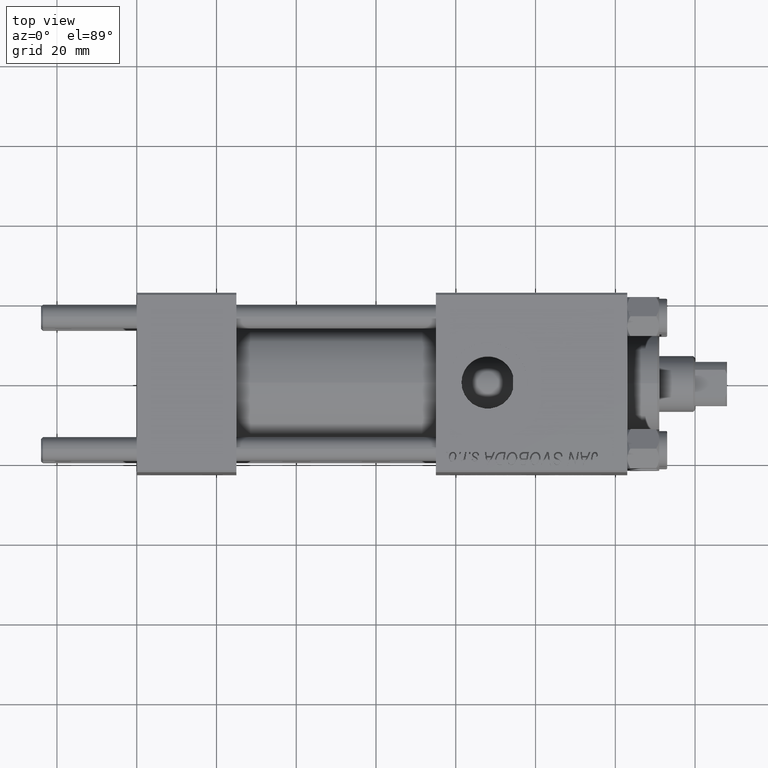
[diagram: clean part render]
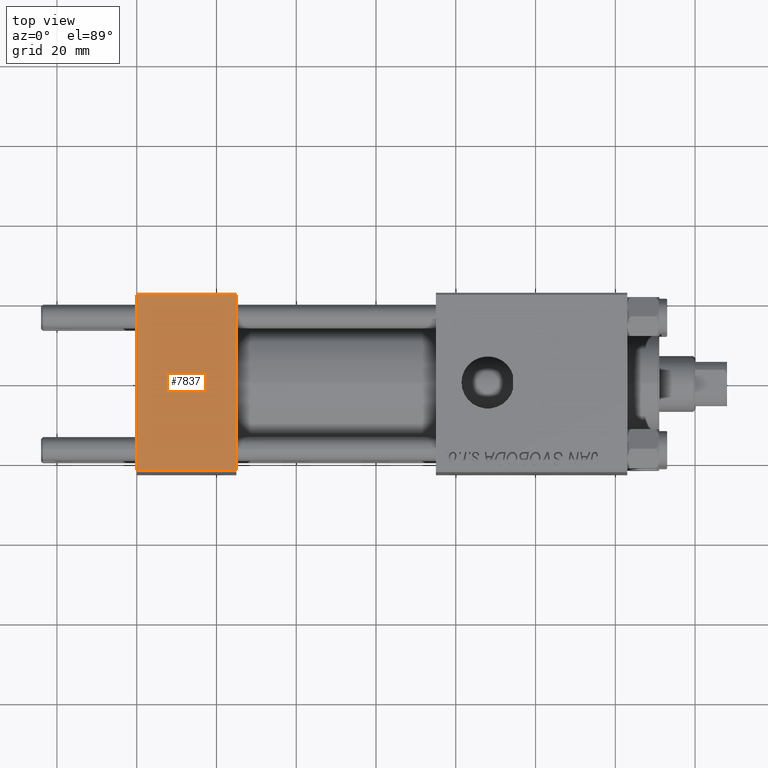
[diagram: same view with one face highlighted and labeled with its STEP entity id]
A machine part, top view. The second image highlights one B-rep face of the part: STEP entity #7837.
In plain terms, the highlighted planar face has unit normal (0, 0, -1).
Its self-contained STEP definition (entity closure, byte-faithful):
#279 = FACE_OUTER_BOUND ( 'NONE', #9865, .T. ) ;
#1384 = CARTESIAN_POINT ( 'NONE',  ( 25.00000000000000000, 22.50000000000000000, 22.50000000000000355 ) ) ;
#1576 = LINE ( 'NONE', #47430, #38972 ) ;
#3339 = VERTEX_POINT ( 'NONE', #30592 ) ;
#6421 = EDGE_CURVE ( 'NONE', #45155, #34618, #12249, .T. ) ;
#7803 = DIRECTION ( 'NONE',  ( 1.000000000000000000, 0.000000000000000000, 0.000000000000000000 ) ) ;
#7837 = ADVANCED_FACE ( 'NONE', ( #279 ), #34800, .F. ) ;
#8982 = ORIENTED_EDGE ( 'NONE', *, *, #13353, .T. ) ;
#9865 = EDGE_LOOP ( 'NONE', ( #28992, #8982, #26243, #35178 ) ) ;
#10669 = DIRECTION ( 'NONE',  ( -1.000000000000000000, 0.000000000000000000, 0.000000000000000000 ) ) ;
#12142 = EDGE_CURVE ( 'NONE', #45155, #3339, #48951, .T. ) ;
#12249 = LINE ( 'NONE', #1384, #23232 ) ;
#13353 = EDGE_CURVE ( 'NONE', #29831, #34618, #23444, .T. ) ;
#15659 = CARTESIAN_POINT ( 'NONE',  ( 25.00000000000000000, 22.50000000000000000, 22.50000000000000355 ) ) ;
#17470 = EDGE_CURVE ( 'NONE', #3339, #29831, #1576, .T. ) ;
#19137 = CARTESIAN_POINT ( 'NONE',  ( 25.00000000000000000, -21.99999999999997868, 22.50000000000000000 ) ) ;
#23232 = VECTOR ( 'NONE', #24815, 1000.000000000000000 ) ;
#23444 = LINE ( 'NONE', #31229, #48315 ) ;
#24013 = DIRECTION ( 'NONE',  ( 0.000000000000000000, -1.000000000000000000, -7.709882115452476934E-17 ) ) ;
#24815 = DIRECTION ( 'NONE',  ( 0.000000000000000000, -1.000000000000000000, -7.709882115452476934E-17 ) ) ;
#26243 = ORIENTED_EDGE ( 'NONE', *, *, #6421, .F. ) ;
#27228 = DIRECTION ( 'NONE',  ( 0.000000000000000000, 7.709882115452476934E-17, -1.000000000000000000 ) ) ;
#28700 = CARTESIAN_POINT ( 'NONE',  ( 0.000000000000000000, -21.99999999999997868, 22.50000000000000000 ) ) ;
#28992 = ORIENTED_EDGE ( 'NONE', *, *, #17470, .T. ) ;
#29831 = VERTEX_POINT ( 'NONE', #28700 ) ;
#30046 = CARTESIAN_POINT ( 'NONE',  ( 0.000000000000000000, 21.99999999999999289, 22.50000000000000355 ) ) ;
#30583 = VECTOR ( 'NONE', #10669, 1000.000000000000000 ) ;
#30592 = CARTESIAN_POINT ( 'NONE',  ( 0.000000000000000000, 21.99999999999999289, 22.50000000000000355 ) ) ;
#31229 = CARTESIAN_POINT ( 'NONE',  ( 25.00000000000000000, -21.99999999999999289, 22.50000000000000000 ) ) ;
#34618 = VERTEX_POINT ( 'NONE', #19137 ) ;
#34800 = PLANE ( 'NONE',  #35297 ) ;
#35042 = DIRECTION ( 'NONE',  ( 0.000000000000000000, 1.000000000000000000, 7.709882115452476934E-17 ) ) ;
#35178 = ORIENTED_EDGE ( 'NONE', *, *, #12142, .T. ) ;
#35297 = AXIS2_PLACEMENT_3D ( 'NONE', #15659, #27228, #35042 ) ;
#38617 = CARTESIAN_POINT ( 'NONE',  ( 25.00000000000000000, 21.99999999999999289, 22.50000000000000355 ) ) ;
#38972 = VECTOR ( 'NONE', #24013, 1000.000000000000000 ) ;
#45155 = VERTEX_POINT ( 'NONE', #38617 ) ;
#47430 = CARTESIAN_POINT ( 'NONE',  ( 0.000000000000000000, 22.50000000000000000, 22.50000000000000355 ) ) ;
#48315 = VECTOR ( 'NONE', #7803, 1000.000000000000000 ) ;
#48951 = LINE ( 'NONE', #30046, #30583 ) ;